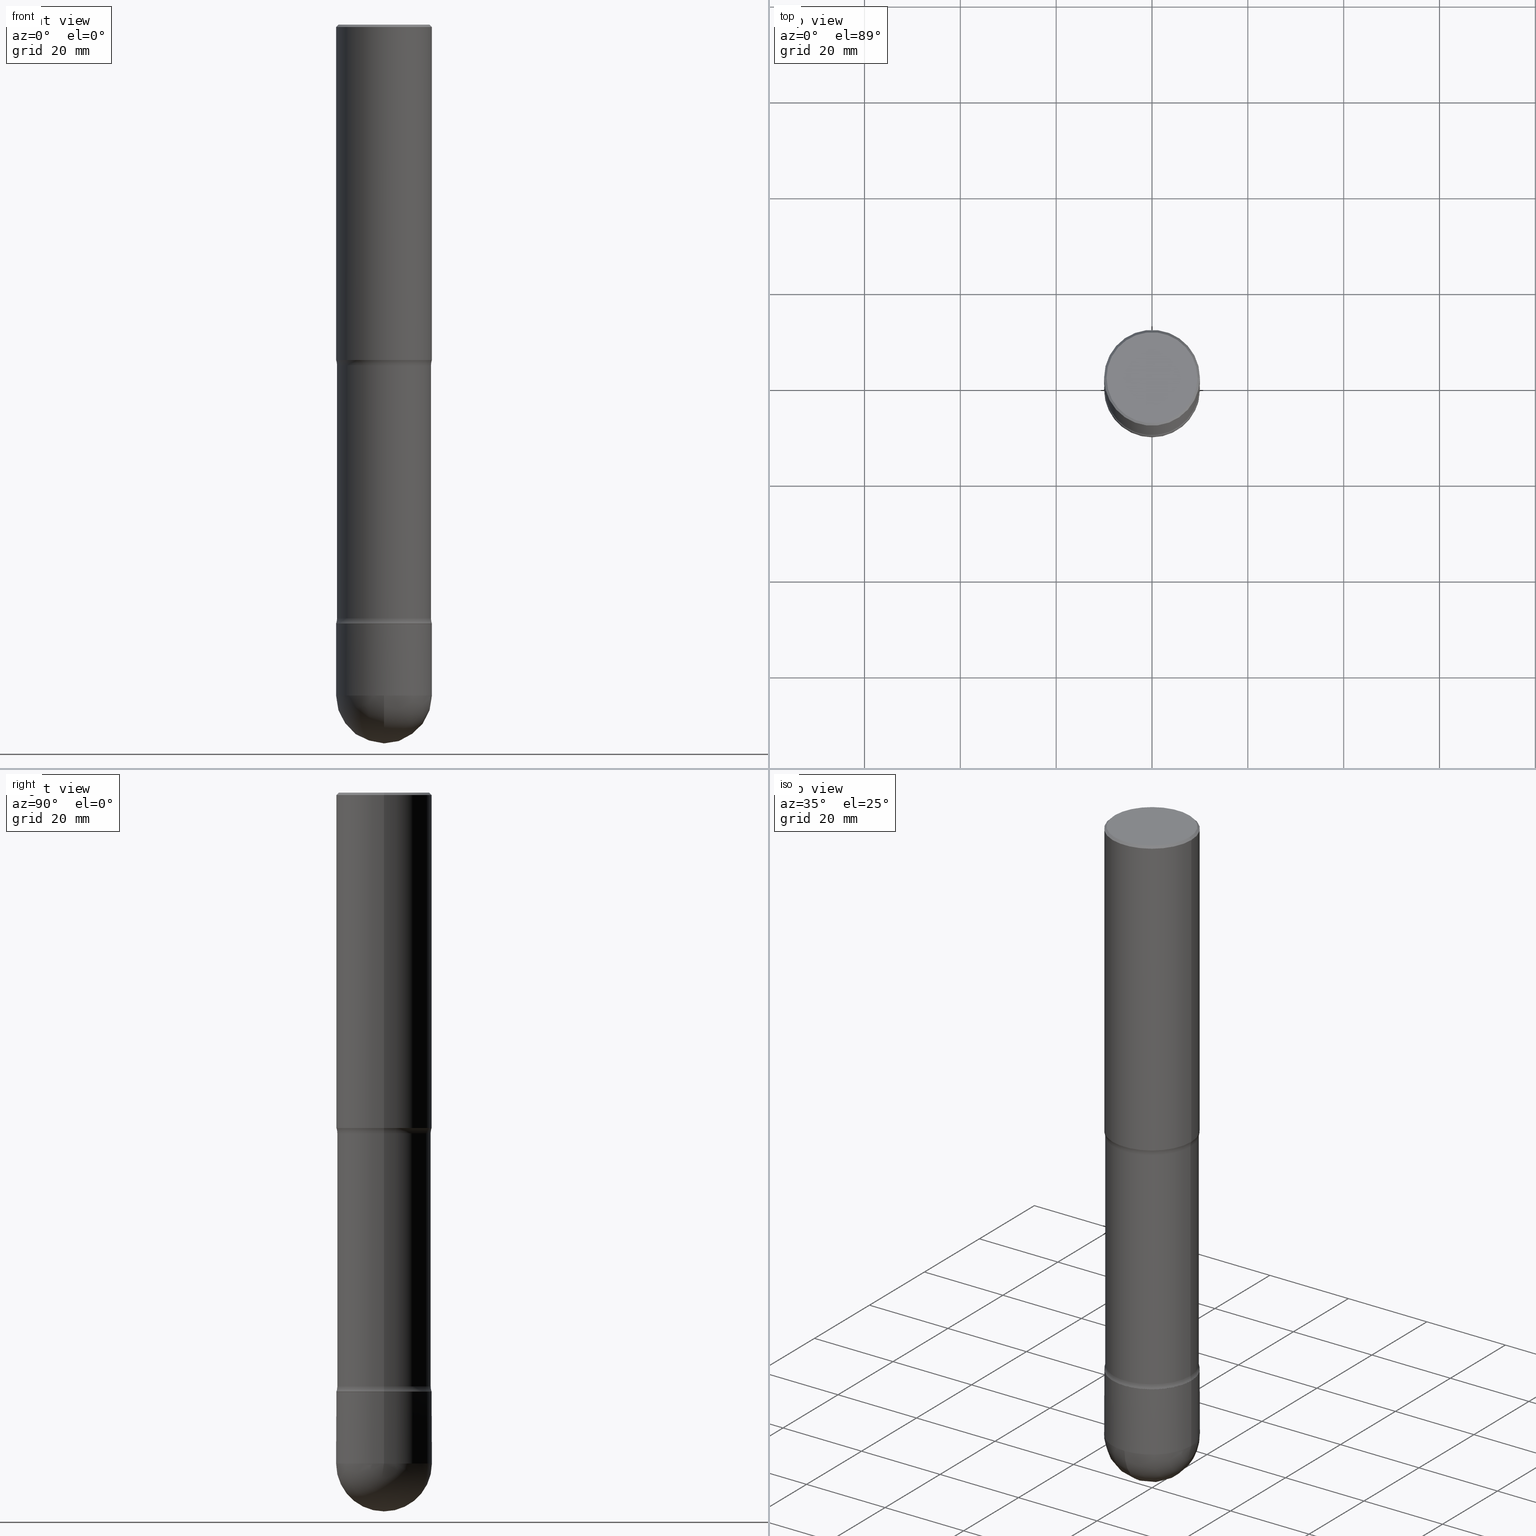
[diagram: canonical four-view strip — front | top / right | iso, engineering-drawing reading convention]
A machine part, canonical four-view strip (front | top / right | iso — engineering-drawing reading convention). The complete STEP part file that produces these views, byte-faithful:
ISO-10303-21;
HEADER;
FILE_DESCRIPTION (( 'STEP AP203' ),
    '1' );
FILE_NAME ('44586.STEP',
    '2024-02-29T19:25:32',
    ( '' ),
    ( '' ),
    'SwSTEP 2.0',
    'SolidWorks 2023',
    '' );
FILE_SCHEMA (( 'CONFIG_CONTROL_DESIGN' ));
ENDSEC;

DATA;
#1 = DIRECTION ( 'NONE',  ( 2.445468806185136597E-29, -3.491481338843145583E-15, -1.000000000000000000 ) ) ;
#2 = DIRECTION ( 'NONE',  ( 2.445468806185136877E-29, -3.491481338843145188E-15, -1.000000000000000000 ) ) ;
#3 = CARTESIAN_POINT ( 'NONE',  ( 4.890937612370354609E-31, -6.982962677686407473E-17, -0.02000000000000033348 ) ) ;
#4 = DIRECTION ( 'NONE',  ( -2.445468806185136877E-29, 3.491481338843145188E-15, 1.000000000000000000 ) ) ;
#5 = ADVANCED_FACE ( 'NONE', ( #476 ), #163, .T. ) ;
#6 = CARTESIAN_POINT ( 'NONE',  ( 1.344526706912624446E-28, -1.929256118791808272E-14, -5.511800000000000033 ) ) ;
#7 = CARTESIAN_POINT ( 'NONE',  ( -0.3936999999999989952, -1.541590565338776243E-14, -5.511800000000000033 ) ) ;
#8 = AXIS2_PLACEMENT_3D ( 'NONE', #225, #58, #179 ) ;
#9 = FACE_OUTER_BOUND ( 'NONE', #537, .T. ) ;
#10 = LOCAL_TIME ( 14, 25, 32.00000000000000000, #461 ) ;
#11 = CARTESIAN_POINT ( 'NONE',  ( 0.3736999999999996991, -2.667287895133366781E-15, 1.845150283989421456E-29 ) ) ;
#12 = CALENDAR_DATE ( 2024, 29, 2 ) ;
#13 = FACE_OUTER_BOUND ( 'NONE', #243, .T. ) ;
#14 = EDGE_CURVE ( 'NONE', #499, #369, #384, .T. ) ;
#15 = DIRECTION ( 'NONE',  ( -1.000000000000000000, 6.982962677686269866E-15, 0.000000000000000000 ) ) ;
#16 = CALENDAR_DATE ( 2024, 29, 2 ) ;
#17 = CARTESIAN_POINT ( 'NONE',  ( 0.5111999999999875532, -1.327816052295078105E-14, -2.798546805273079308 ) ) ;
#18 = ORIENTED_EDGE ( 'NONE', *, *, #145, .T. ) ;
#19 = CIRCLE ( 'NONE', #236, 0.3936999999999989952 ) ;
#20 = DATE_TIME_ROLE ( 'creation_date' ) ;
#21 = AXIS2_PLACEMENT_3D ( 'NONE', #487, #92, #270 ) ;
#22 = DIRECTION ( 'NONE',  ( -1.000000000000000000, 6.982962677686266711E-15, 0.000000000000000000 ) ) ;
#23 = ORIENTED_EDGE ( 'NONE', *, *, #90, .T. ) ;
#24 = SHAPE_DEFINITION_REPRESENTATION ( #199, #501 ) ;
#25 = ADVANCED_FACE ( 'NONE', ( #425 ), #200, .T. ) ;
#26 = CARTESIAN_POINT ( 'NONE',  ( 1.203464108899829379E-28, -1.718227796471488830E-14, -4.921199999999999797 ) ) ;
#27 = DATE_AND_TIME ( #16, #520 ) ;
#28 = DIRECTION ( 'NONE',  ( 2.445468806185136597E-29, -3.491481338843145583E-15, -1.000000000000000000 ) ) ;
#29 = EDGE_LOOP ( 'NONE', ( #518, #484, #23, #315 ) ) ;
#30 = CIRCLE ( 'NONE', #345, 0.3861999999999995437 ) ;
#31 = VERTEX_POINT ( 'NONE', #531 ) ;
#32 = CARTESIAN_POINT ( 'NONE',  ( -0.3935673271255956118, -1.443272949243584217E-14, -4.920832672874404068 ) ) ;
#33 = ADVANCED_FACE ( 'NONE', ( #9 ), #308, .F. ) ;
#34 = EDGE_LOOP ( 'NONE', ( #565, #170, #548, #541 ) ) ;
#35 = VERTEX_POINT ( 'NONE', #94 ) ;
#36 = APPROVAL_PERSON_ORGANIZATION ( #71, #481, #154 ) ;
#37 = DIRECTION ( 'NONE',  ( 2.445468806185136597E-29, -3.491481338843145583E-15, -1.000000000000000000 ) ) ;
#38 = EDGE_CURVE ( 'NONE', #378, #246, #268, .T. ) ;
#39 = EDGE_CURVE ( 'NONE', #160, #79, #390, .T. ) ;
#40 = CARTESIAN_POINT ( 'NONE',  ( 0.3861999999999992661, -1.237187487833494687E-14, -2.798546805273079308 ) ) ;
#41 = VERTEX_POINT ( 'NONE', #352 ) ;
#42 = VERTEX_POINT ( 'NONE', #136 ) ;
#43 = CIRCLE ( 'NONE', #366, 0.3936999999999991617 ) ;
#44 = DIRECTION ( 'NONE',  ( -0.7071067811865426878, 2.468850131082206573E-15, -0.7071067811865523467 ) ) ;
#45 = CARTESIAN_POINT ( 'NONE',  ( 1.193034965701952326E-28, -1.703337743994264860E-14, -4.878553194726919173 ) ) ;
#46 = EDGE_LOOP ( 'NONE', ( #221, #131, #387, #80 ) ) ;
#47 = ORIENTED_EDGE ( 'NONE', *, *, #475, .F. ) ;
#48 = FACE_OUTER_BOUND ( 'NONE', #29, .T. ) ;
#49 = EDGE_CURVE ( 'NONE', #436, #79, #353, .T. ) ;
#50 = CARTESIAN_POINT ( 'NONE',  ( 0.3935673271255956118, -1.988106330864406077E-14, -4.920832672874404068 ) ) ;
#51 = DIRECTION ( 'NONE',  ( 2.445468806185136597E-29, -3.491481338843145583E-15, -1.000000000000000000 ) ) ;
#52 = EDGE_LOOP ( 'NONE', ( #488, #162, #392, #85 ) ) ;
#53 = EDGE_LOOP ( 'NONE', ( #47, #517, #506, #168 ) ) ;
#54 = CARTESIAN_POINT ( 'NONE',  ( 1.203464108899829379E-28, -1.718227796471488830E-14, -4.921199999999999797 ) ) ;
#55 = AXIS2_PLACEMENT_3D ( 'NONE', #373, #228, #406 ) ;
#56 = DIRECTION ( 'NONE',  ( 1.000000000000000000, -6.982962677686261977E-15, 0.000000000000000000 ) ) ;
#57 = CARTESIAN_POINT ( 'NONE',  ( 0.5112000000000086475, -2.054046401640351860E-14, -4.878553194726919173 ) ) ;
#58 = DIRECTION ( 'NONE',  ( 2.445468806185136597E-29, -3.491481338843145583E-15, -1.000000000000000000 ) ) ;
#59 = ADVANCED_FACE ( 'NONE', ( #142 ), #496, .T. ) ;
#60 = CARTESIAN_POINT ( 'NONE',  ( 0.000000000000000000, 0.000000000000000000, 0.000000000000000000 ) ) ;
#61 = CARTESIAN_POINT ( 'NONE',  ( -0.3937000000000001054, -6.872981015512738807E-15, -2.755899999999999572 ) ) ;
#62 = PERSON_AND_ORGANIZATION ( #104, #227 ) ;
#63 = DIRECTION ( 'NONE',  ( -1.000000000000000000, 6.982962677686265133E-15, -4.883557194083111780E-29 ) ) ;
#64 = EDGE_LOOP ( 'NONE', ( #111, #452, #515, #116 ) ) ;
#65 = DIRECTION ( 'NONE',  ( 1.000000000000000000, -6.982962677686266711E-15, 0.000000000000000000 ) ) ;
#66 = CIRCLE ( 'NONE', #149, 0.3936999999999993838 ) ;
#67 = EDGE_CURVE ( 'NONE', #510, #41, #311, .T. ) ;
#68 = CALENDAR_DATE ( 2024, 29, 2 ) ;
#69 = AXIS2_PLACEMENT_3D ( 'NONE', #535, #51, #218 ) ;
#70 = CARTESIAN_POINT ( 'NONE',  ( 2.609533152651355437E-15, 0.3736999999999996991, -1.300498063835582025E-15 ) ) ;
#71 = PERSON_AND_ORGANIZATION ( #104, #227 ) ;
#72 = ORIENTED_EDGE ( 'NONE', *, *, #81, .F. ) ;
#73 = AXIS2_PLACEMENT_3D ( 'NONE', #433, #93, #399 ) ;
#74 = DIRECTION ( 'NONE',  ( 6.982962677686265133E-15, 1.000000000000000000, -2.775563112689121034E-15 ) ) ;
#75 = AXIS2_PLACEMENT_3D ( 'NONE', #367, #107, #22 ) ;
#76 = LOCAL_TIME ( 14, 25, 32.00000000000000000, #466 ) ;
#77 = ORIENTED_EDGE ( 'NONE', *, *, #67, .F. ) ;
#78 = DIRECTION ( 'NONE',  ( 2.445468806185136597E-29, -3.491481338843145583E-15, -1.000000000000000000 ) ) ;
#79 = VERTEX_POINT ( 'NONE', #50 ) ;
#80 = ORIENTED_EDGE ( 'NONE', *, *, #38, .F. ) ;
#81 = EDGE_CURVE ( 'NONE', #426, #35, #66, .T. ) ;
#82 = CC_DESIGN_SECURITY_CLASSIFICATION ( #303, ( #360 ) ) ;
#83 = EDGE_LOOP ( 'NONE', ( #553, #261, #295, #300, #465 ) ) ;
#84 = DIRECTION ( 'NONE',  ( -1.000000000000000000, 6.982962677686266711E-15, -4.876176775795935793E-29 ) ) ;
#85 = ORIENTED_EDGE ( 'NONE', *, *, #209, .F. ) ;
#86 = DIRECTION ( 'NONE',  ( -1.000000000000000000, 6.982962677686265922E-15, 0.000000000000000000 ) ) ;
#87 = DIRECTION ( 'NONE',  ( 2.438088387897960049E-29, -3.491481338843145188E-15, -1.000000000000000000 ) ) ;
#88 = ORIENTED_EDGE ( 'NONE', *, *, #39, .F. ) ;
#89 = VECTOR ( 'NONE', #351, 39.37007874015748854 ) ;
#90 = EDGE_CURVE ( 'NONE', #510, #246, #538, .T. ) ;
#91 = CARTESIAN_POINT ( 'NONE',  ( -0.3861999999999994326, -1.448545777859245492E-14, -4.921199999999999797 ) ) ;
#92 = DIRECTION ( 'NONE',  ( -2.445468806185136597E-29, 3.491481338843145583E-15, 1.000000000000000000 ) ) ;
#93 = DIRECTION ( 'NONE',  ( 2.445468806185136597E-29, -3.491481338843145583E-15, -1.000000000000000000 ) ) ;
#94 = CARTESIAN_POINT ( 'NONE',  ( -2.797406750687373580E-15, -0.3937000000000184796, -5.511799999999999145 ) ) ;
#95 = DIRECTION ( 'NONE',  ( 2.445468806185136597E-29, -3.491481338843145583E-15, -1.000000000000000000 ) ) ;
#96 = DIRECTION ( 'NONE',  ( -1.000000000000000000, 6.982962677686265133E-15, -4.883557194083112340E-29 ) ) ;
#97 = ORIENTED_EDGE ( 'NONE', *, *, #522, .T. ) ;
#98 = DIRECTION ( 'NONE',  ( -2.445468806185136597E-29, 3.491481338843145583E-15, 1.000000000000000000 ) ) ;
#99 = DIRECTION ( 'NONE',  ( 1.000000000000000000, -6.982962677686266711E-15, 0.000000000000000000 ) ) ;
#100 = EDGE_CURVE ( 'NONE', #42, #369, #43, .T. ) ;
#101 = CIRCLE ( 'NONE', #171, 0.1249999999999882871 ) ;
#102 = DIRECTION ( 'NONE',  ( -1.000000000000000000, 6.982962677686266711E-15, 0.000000000000000000 ) ) ;
#103 = DATE_AND_TIME ( #12, #547 ) ;
#104 = PERSON ( 'UNSPECIFIED', 'UNSPECIFIED', 'UNSPECIFIED', ('UNSPECIFIED'), ('UNSPECIFIED'), ('UNSPECIFIED') ) ;
#105 = CARTESIAN_POINT ( 'NONE',  ( 4.890937612370354609E-31, -6.982962677686407473E-17, -0.02000000000000033348 ) ) ;
#106 = MECHANICAL_CONTEXT ( 'NONE', #144, 'mechanical' ) ;
#107 = DIRECTION ( 'NONE',  ( 2.445468806185136597E-29, -3.491481338843145583E-15, -1.000000000000000000 ) ) ;
#108 = FACE_OUTER_BOUND ( 'NONE', #217, .T. ) ;
#109 = MANIFOLD_SOLID_BREP ( 'Body-Move/Copy2[1]', #428 ) ;
#110 =( NAMED_UNIT ( * ) PLANE_ANGLE_UNIT ( ) SI_UNIT ( $, .RADIAN. ) );
#111 = ORIENTED_EDGE ( 'NONE', *, *, #322, .F. ) ;
#112 = PERSON_AND_ORGANIZATION ( #104, #227 ) ;
#113 = CC_DESIGN_APPROVAL ( #282, ( #360 ) ) ;
#114 = CARTESIAN_POINT ( 'NONE',  ( 6.843758914944385400E-29, -9.771073946490059360E-15, -2.798546805273079308 ) ) ;
#115 = COORDINATED_UNIVERSAL_TIME_OFFSET ( 5, 0, .BEHIND. ) ;
#116 = ORIENTED_EDGE ( 'NONE', *, *, #49, .F. ) ;
#117 = ORIENTED_EDGE ( 'NONE', *, *, #195, .F. ) ;
#118 = CC_DESIGN_PERSON_AND_ORGANIZATION_ASSIGNMENT ( #408, #321, ( #379 ) ) ;
#119 = ORIENTED_EDGE ( 'NONE', *, *, #529, .F. ) ;
#120 = AXIS2_PLACEMENT_3D ( 'NONE', #382, #469, #509 ) ;
#121 = DIRECTION ( 'NONE',  ( -1.000000000000000000, 6.982962677686266711E-15, 0.000000000000000000 ) ) ;
#122 = CIRCLE ( 'NONE', #191, 0.3861999999999995437 ) ;
#123 = ORIENTED_EDGE ( 'NONE', *, *, #522, .F. ) ;
#124 = ADVANCED_FACE ( 'NONE', ( #215 ), #449, .T. ) ;
#125 = CARTESIAN_POINT ( 'NONE',  ( 1.203464108899829379E-28, -1.718227796471488830E-14, -4.921199999999999797 ) ) ;
#126 = EDGE_LOOP ( 'NONE', ( #119, #194, #207, #381 ) ) ;
#127 = AXIS2_PLACEMENT_3D ( 'NONE', #237, #288, #412 ) ;
#128 = ORIENTED_EDGE ( 'NONE', *, *, #516, .F. ) ;
#129 = DIRECTION ( 'NONE',  ( 2.445468806185136597E-29, -3.491481338843145583E-15, -1.000000000000000000 ) ) ;
#130 =( CONVERSION_BASED_UNIT ( 'INCH', #401 ) LENGTH_UNIT ( ) NAMED_UNIT ( #479 ) );
#131 = ORIENTED_EDGE ( 'NONE', *, *, #475, .T. ) ;
#132 = DIRECTION ( 'NONE',  ( 0.7071067811865426878, -7.319954787623238690E-15, -0.7071067811865523467 ) ) ;
#133 = ADVANCED_FACE ( 'NONE', ( #458 ), #238, .T. ) ;
#134 = VERTEX_POINT ( 'NONE', #329 ) ;
#135 = DIRECTION ( 'NONE',  ( -1.000000000000000000, 6.982962677686268288E-15, 0.000000000000000000 ) ) ;
#136 = CARTESIAN_POINT ( 'NONE',  ( -0.3936999999999991617, -1.541590565338776243E-14, -4.921199999999999797 ) ) ;
#137 = CARTESIAN_POINT ( 'NONE',  ( 1.203464108899829379E-28, -1.718227796471488830E-14, -4.921199999999999797 ) ) ;
#138 = CARTESIAN_POINT ( 'NONE',  ( 1.203464108899829379E-28, -1.718227796471488830E-14, -4.921199999999999797 ) ) ;
#139 = AXIS2_PLACEMENT_3D ( 'NONE', #316, #357, #533 ) ;
#140 = VECTOR ( 'NONE', #132, 39.37007874015748143 ) ;
#141 = DIRECTION ( 'NONE',  ( -1.000000000000000000, 6.982962677686265133E-15, 0.000000000000000000 ) ) ;
#142 = FACE_OUTER_BOUND ( 'NONE', #52, .T. ) ;
#143 = CARTESIAN_POINT ( 'NONE',  ( 1.193034965701952550E-28, -1.703337743994265175E-14, -4.878553194726920061 ) ) ;
#144 = APPLICATION_CONTEXT ( 'configuration controlled 3d designs of mechanical parts and assemblies' ) ;
#145 = EDGE_CURVE ( 'NONE', #160, #41, #485, .T. ) ;
#146 = CARTESIAN_POINT ( 'NONE',  ( 0.3936999999999989952, -2.096250481028034702E-14, -5.511800000000000033 ) ) ;
#147 = APPLICATION_CONTEXT ( 'configuration controlled 3d designs of mechanical parts and assemblies' ) ;
#148 = PERSON_AND_ORGANIZATION ( #104, #227 ) ;
#149 = AXIS2_PLACEMENT_3D ( 'NONE', #6, #176, #178 ) ;
#150 = VECTOR ( 'NONE', #361, 39.37007874015748143 ) ;
#151 = APPROVAL_DATE_TIME ( #500, #282 ) ;
#152 = FACE_OUTER_BOUND ( 'NONE', #64, .T. ) ;
#153 = ORIENTED_EDGE ( 'NONE', *, *, #220, .T. ) ;
#154 = APPROVAL_ROLE ( '' ) ;
#155 = ADVANCED_FACE ( 'NONE', ( #108 ), #240, .T. ) ;
#156 = APPROVAL_ROLE ( '' ) ;
#157 = VECTOR ( 'NONE', #257, 39.37007874015748143 ) ;
#158 = AXIS2_PLACEMENT_3D ( 'NONE', #305, #483, #99 ) ;
#159 = ADVANCED_FACE ( 'NONE', ( #337 ), #513, .T. ) ;
#160 = VERTEX_POINT ( 'NONE', #32 ) ;
#161 = ORIENTED_EDGE ( 'NONE', *, *, #302, .F. ) ;
#162 = ORIENTED_EDGE ( 'NONE', *, *, #529, .T. ) ;
#163 = CYLINDRICAL_SURFACE ( 'NONE', #120, 0.3861999999999994326 ) ;
#164 = AXIS2_PLACEMENT_3D ( 'NONE', #413, #372, #327 ) ;
#165 = EDGE_CURVE ( 'NONE', #566, #35, #19, .T. ) ;
#166 = EDGE_LOOP ( 'NONE', ( #447, #350, #306, #525, #153 ) ) ;
#167 = DIRECTION ( 'NONE',  ( -2.445468806185136597E-29, 3.491481338843145583E-15, 1.000000000000000000 ) ) ;
#168 = ORIENTED_EDGE ( 'NONE', *, *, #277, .F. ) ;
#169 = LINE ( 'NONE', #346, #140 ) ;
#170 = ORIENTED_EDGE ( 'NONE', *, *, #81, .T. ) ;
#171 = AXIS2_PLACEMENT_3D ( 'NONE', #17, #185, #230 ) ;
#172 = AXIS2_PLACEMENT_3D ( 'NONE', #137, #524, #86 ) ;
#173 = CC_DESIGN_PERSON_AND_ORGANIZATION_ASSIGNMENT ( #62, #186, ( #303 ) ) ;
#174 = DIRECTION ( 'NONE',  ( 6.860497997771531562E-15, 1.000000000000000000, -3.491481338843145583E-15 ) ) ;
#175 = ORIENTED_EDGE ( 'NONE', *, *, #90, .F. ) ;
#176 = DIRECTION ( 'NONE',  ( -1.000000000000000000, 7.105427357601001070E-15, -4.926315508542082329E-29 ) ) ;
#177 = ORIENTED_EDGE ( 'NONE', *, *, #233, .T. ) ;
#178 = DIRECTION ( 'NONE',  ( -7.105427357601001070E-15, -1.000000000000000000, 0.000000000000000000 ) ) ;
#179 = DIRECTION ( 'NONE',  ( -1.000000000000000000, 6.982962677686266711E-15, -4.876176775795935793E-29 ) ) ;
#180 = VERTEX_POINT ( 'NONE', #242 ) ;
#181 = CC_DESIGN_DATE_AND_TIME_ASSIGNMENT ( #536, #235, ( #303 ) ) ;
#182 = TOROIDAL_SURFACE ( 'NONE', #486, 0.5111999999999875532, 0.1249999999999883010 ) ;
#183 = DIRECTION ( 'NONE',  ( 2.445468806185136597E-29, -3.491481338843145583E-15, -1.000000000000000000 ) ) ;
#184 = VERTEX_POINT ( 'NONE', #416 ) ;
#185 = DIRECTION ( 'NONE',  ( 6.860497997771531562E-15, 1.000000000000000000, -3.491481338843145583E-15 ) ) ;
#186 = PERSON_AND_ORGANIZATION_ROLE ( 'classification_officer' ) ;
#187 = ORIENTED_EDGE ( 'NONE', *, *, #195, .T. ) ;
#188 = DIRECTION ( 'NONE',  ( 1.000000000000000000, 0.000000000000000000, 0.000000000000000000 ) ) ;
#189 = ORIENTED_EDGE ( 'NONE', *, *, #277, .T. ) ;
#190 = AXIS2_PLACEMENT_3D ( 'NONE', #3, #95, #269 ) ;
#191 = AXIS2_PLACEMENT_3D ( 'NONE', #143, #224, #450 ) ;
#192 = ADVANCED_FACE ( 'NONE', ( #152 ), #455, .T. ) ;
#193 = CALENDAR_DATE ( 2024, 29, 2 ) ;
#194 = ORIENTED_EDGE ( 'NONE', *, *, #468, .T. ) ;
#195 = EDGE_CURVE ( 'NONE', #480, #510, #338, .T. ) ;
#196 = DIRECTION ( 'NONE',  ( 1.000000000000000000, -6.982962677686265922E-15, 4.876176775795935793E-29 ) ) ;
#197 = CIRCLE ( 'NONE', #519, 0.3936999999999997724 ) ;
#198 = ORIENTED_EDGE ( 'NONE', *, *, #400, .T. ) ;
#199 = PRODUCT_DEFINITION_SHAPE ( 'NONE', 'NONE',  #267 ) ;
#200 = CYLINDRICAL_SURFACE ( 'NONE', #301, 0.3936999999999999389 ) ;
#201 = ORIENTED_EDGE ( 'NONE', *, *, #323, .F. ) ;
#202 = ORIENTED_EDGE ( 'NONE', *, *, #67, .T. ) ;
#203 = AXIS2_PLACEMENT_3D ( 'NONE', #70, #419, #196 ) ;
#204 = AXIS2_PLACEMENT_3D ( 'NONE', #138, #98, #554 ) ;
#205 = CYLINDRICAL_SURFACE ( 'NONE', #368, 0.3936999999999990507 ) ;
#206 = CARTESIAN_POINT ( 'NONE',  ( -0.3931999999999991058, -1.438842392770617915E-14, -4.921199999999999797 ) ) ;
#207 = ORIENTED_EDGE ( 'NONE', *, *, #209, .T. ) ;
#208 = ORIENTED_EDGE ( 'NONE', *, *, #415, .F. ) ;
#209 = EDGE_CURVE ( 'NONE', #298, #378, #424, .T. ) ;
#210 = CARTESIAN_POINT ( 'NONE',  ( -0.3936999999999990507, 2.797406750687507687E-15, -1.936584745033351971E-29 ) ) ;
#211 = CIRCLE ( 'NONE', #462, 0.3936999999999989952 ) ;
#212 = DIRECTION ( 'NONE',  ( -2.445468806185136597E-29, 3.491481338843145583E-15, 1.000000000000000000 ) ) ;
#213 = CARTESIAN_POINT ( 'NONE',  ( 1.347893496593123646E-28, -1.924434684343564878E-14, -5.511800000000000033 ) ) ;
#214 = DIRECTION ( 'NONE',  ( 2.438088387897960049E-29, -3.491481338843145188E-15, -1.000000000000000000 ) ) ;
#215 = FACE_OUTER_BOUND ( 'NONE', #53, .T. ) ;
#216 = FACE_OUTER_BOUND ( 'NONE', #166, .T. ) ;
#217 = EDGE_LOOP ( 'NONE', ( #198, #255, #310, #77 ) ) ;
#218 = DIRECTION ( 'NONE',  ( -1.000000000000000000, 6.982962677686266711E-15, 0.000000000000000000 ) ) ;
#219 = DIRECTION ( 'NONE',  ( -1.000000000000000000, 6.982962677686265922E-15, -4.876176775795935793E-29 ) ) ;
#220 = EDGE_CURVE ( 'NONE', #499, #251, #211, .T. ) ;
#221 = ORIENTED_EDGE ( 'NONE', *, *, #456, .T. ) ;
#222 = ORIENTED_EDGE ( 'NONE', *, *, #100, .T. ) ;
#223 = DIRECTION ( 'NONE',  ( 2.445468806185136877E-29, -3.491481338843145188E-15, -1.000000000000000000 ) ) ;
#224 = DIRECTION ( 'NONE',  ( 2.445468806185136597E-29, -3.491481338843145583E-15, -1.000000000000000000 ) ) ;
#225 = CARTESIAN_POINT ( 'NONE',  ( 0.000000000000000000, 0.000000000000000000, 0.000000000000000000 ) ) ;
#226 = AXIS2_PLACEMENT_3D ( 'NONE', #318, #355, #264 ) ;
#227 = ORGANIZATION ( 'UNSPECIFIED', 'UNSPECIFIED', '' ) ;
#228 = DIRECTION ( 'NONE',  ( 2.445468806185136597E-29, -3.491481338843145583E-15, -1.000000000000000000 ) ) ;
#229 = DIRECTION ( 'NONE',  ( -1.000000000000000000, 6.860497997771522885E-15, 0.000000000000000000 ) ) ;
#230 = DIRECTION ( 'NONE',  ( -1.000000000000000000, 6.860497997771536296E-15, 0.000000000000000000 ) ) ;
#231 = CARTESIAN_POINT ( 'NONE',  ( 1.193034965701952550E-28, -1.703337743994265175E-14, -4.878553194726920061 ) ) ;
#232 = CARTESIAN_POINT ( 'NONE',  ( 1.344526706912624446E-28, -1.929256118791808272E-14, -5.511800000000000033 ) ) ;
#233 = EDGE_CURVE ( 'NONE', #79, #160, #561, .T. ) ;
#234 = DIRECTION ( 'NONE',  ( 2.445468806185136597E-29, -3.491481338843145583E-15, -1.000000000000000000 ) ) ;
#235 = DATE_TIME_ROLE ( 'classification_date' ) ;
#236 = AXIS2_PLACEMENT_3D ( 'NONE', #474, #341, #463 ) ;
#237 = CARTESIAN_POINT ( 'NONE',  ( 1.203374280197098316E-28, -1.718099544891061913E-14, -4.920832672874404068 ) ) ;
#238 = SPHERICAL_SURFACE ( 'NONE', #164, 0.3936999999999993838 ) ;
#239 = AXIS2_PLACEMENT_3D ( 'NONE', #262, #183, #354 ) ;
#240 = CYLINDRICAL_SURFACE ( 'NONE', #55, 0.3861999999999994326 ) ;
#241 = DATE_AND_TIME ( #68, #10 ) ;
#242 = CARTESIAN_POINT ( 'NONE',  ( -0.3931999999999991058, -1.438647766170034457E-14, -4.921199999999999797 ) ) ;
#243 = EDGE_LOOP ( 'NONE', ( #72, #342, #248, #161 ) ) ;
#244 =( NAMED_UNIT ( * ) SI_UNIT ( $, .STERADIAN. ) SOLID_ANGLE_UNIT ( ) );
#245 = ADVANCED_FACE ( 'NONE', ( #247 ), #376, .T. ) ;
#246 = VERTEX_POINT ( 'NONE', #61 ) ;
#247 = FACE_OUTER_BOUND ( 'NONE', #448, .T. ) ;
#248 = ORIENTED_EDGE ( 'NONE', *, *, #220, .F. ) ;
#249 = CIRCLE ( 'NONE', #75, 0.3861999999999992661 ) ;
#250 = CC_DESIGN_APPROVAL ( #481, ( #267 ) ) ;
#251 = VERTEX_POINT ( 'NONE', #276 ) ;
#252 = CARTESIAN_POINT ( 'NONE',  ( 1.442488208652382782E-28, -2.064305021877940893E-14, -5.905499999999999972 ) ) ;
#253 = ADVANCED_FACE ( 'NONE', ( #13 ), #364, .T. ) ;
#254 = DIRECTION ( 'NONE',  ( -1.000000000000000000, 6.982962677686267499E-15, -4.883557194083113462E-29 ) ) ;
#255 = ORIENTED_EDGE ( 'NONE', *, *, #540, .T. ) ;
#256 = EDGE_LOOP ( 'NONE', ( #502, #187, #202, #549 ) ) ;
#257 = DIRECTION ( 'NONE',  ( -2.445468806185136877E-29, 3.491481338843145188E-15, 1.000000000000000000 ) ) ;
#258 = CIRCLE ( 'NONE', #8, 0.3736999999999996991 ) ;
#259 = AXIS2_PLACEMENT_3D ( 'NONE', #45, #439, #96 ) ;
#260 = DIRECTION ( 'NONE',  ( 1.000000000000000000, -6.982962677686266711E-15, 0.000000000000000000 ) ) ;
#261 = ORIENTED_EDGE ( 'NONE', *, *, #165, .T. ) ;
#262 = CARTESIAN_POINT ( 'NONE',  ( 4.890937612370354609E-31, -6.982962677686407473E-17, -0.02000000000000033348 ) ) ;
#263 = DIRECTION ( 'NONE',  ( -1.000000000000000000, 6.982962677686265133E-15, -4.883557194083112340E-29 ) ) ;
#264 = DIRECTION ( 'NONE',  ( -1.000000000000000000, 6.982962677686267499E-15, -4.883557194083113462E-29 ) ) ;
#265 = AXIS2_PLACEMENT_3D ( 'NONE', #336, #167, #297 ) ;
#266 = AXIS2_PLACEMENT_3D ( 'NONE', #527, #391, #263 ) ;
#267 = PRODUCT_DEFINITION ( 'UNKNOWN', '', #360, #440 ) ;
#268 = LINE ( 'NONE', #435, #429 ) ;
#269 = DIRECTION ( 'NONE',  ( -1.000000000000000000, 6.982962677686266711E-15, 0.000000000000000000 ) ) ;
#270 = DIRECTION ( 'NONE',  ( 1.000000000000000000, -6.982962677686266711E-15, 4.876176775795935232E-29 ) ) ;
#271 = FACE_OUTER_BOUND ( 'NONE', #560, .T. ) ;
#272 = EDGE_LOOP ( 'NONE', ( #128, #88, #18, #348 ) ) ;
#273 = DIRECTION ( 'NONE',  ( 1.000000000000000000, -6.982962677686268288E-15, 0.000000000000000000 ) ) ;
#274 = DIRECTION ( 'NONE',  ( -1.000000000000000000, 6.982962677686266711E-15, 0.000000000000000000 ) ) ;
#275 = CARTESIAN_POINT ( 'NONE',  ( -0.5112000000000086475, -1.346368691910937035E-14, -4.878553194726919173 ) ) ;
#276 = CARTESIAN_POINT ( 'NONE',  ( 2.749192406205212195E-15, 0.3936999999999799549, -5.511800000000000921 ) ) ;
#277 = EDGE_CURVE ( 'NONE', #31, #246, #359, .T. ) ;
#278 = CIRCLE ( 'NONE', #546, 0.3936999999999989952 ) ;
#279 = VECTOR ( 'NONE', #454, 39.37007874015748143 ) ;
#280 = CARTESIAN_POINT ( 'NONE',  ( -0.3936999999999997724, 2.679362779428217157E-15, -0.02000000000000033348 ) ) ;
#281 = PERSON_AND_ORGANIZATION ( #104, #227 ) ;
#282 = APPROVAL ( #409, 'UNSPECIFIED' ) ;
#283 = PERSON_AND_ORGANIZATION_ROLE ( 'design_supplier' ) ;
#284 = CARTESIAN_POINT ( 'NONE',  ( 6.739467482965617111E-29, -9.622173421717822812E-15, -2.755899999999999572 ) ) ;
#285 = COORDINATED_UNIVERSAL_TIME_OFFSET ( 5, 0, .BEHIND. ) ;
#286 = AXIS2_PLACEMENT_3D ( 'NONE', #563, #214, #394 ) ;
#287 = CC_DESIGN_PERSON_AND_ORGANIZATION_ASSIGNMENT ( #365, #495, ( #360 ) ) ;
#288 = DIRECTION ( 'NONE',  ( 2.445468806185136597E-29, -3.491481338843145583E-15, -1.000000000000000000 ) ) ;
#289 = PERSON_AND_ORGANIZATION_ROLE ( 'creator' ) ;
#290 = ORIENTED_EDGE ( 'NONE', *, *, #49, .T. ) ;
#291 = ORIENTED_EDGE ( 'NONE', *, *, #516, .T. ) ;
#292 = CLOSED_SHELL ( 'NONE', ( #192, #451, #155, #331, #25, #59, #508, #124, #422, #5, #460, #159, #356, #245 ) ) ;
#293 = AXIS2_PLACEMENT_3D ( 'NONE', #521, #557, #441 ) ;
#294 = AXIS2_PLACEMENT_3D ( 'NONE', #319, #309, #274 ) ;
#295 = ORIENTED_EDGE ( 'NONE', *, *, #302, .T. ) ;
#296 = EDGE_CURVE ( 'NONE', #426, #251, #503, .T. ) ;
#297 = DIRECTION ( 'NONE',  ( 1.000000000000000000, -6.982962677686265922E-15, 0.000000000000000000 ) ) ;
#298 = VERTEX_POINT ( 'NONE', #307 ) ;
#299 = EDGE_LOOP ( 'NONE', ( #432, #291, #418, #335 ) ) ;
#300 = ORIENTED_EDGE ( 'NONE', *, *, #14, .T. ) ;
#301 = AXIS2_PLACEMENT_3D ( 'NONE', #125, #37, #389 ) ;
#302 = EDGE_CURVE ( 'NONE', #35, #499, #278, .T. ) ;
#303 = SECURITY_CLASSIFICATION ( '', '', #459 ) ;
#304 = DIRECTION ( 'NONE',  ( 1.000000000000000000, -6.982962677686266711E-15, 4.876176775795935232E-29 ) ) ;
#305 = CARTESIAN_POINT ( 'NONE',  ( 1.347893496593123646E-28, -1.924434684343564878E-14, -5.511800000000000033 ) ) ;
#306 = ORIENTED_EDGE ( 'NONE', *, *, #405, .F. ) ;
#307 = CARTESIAN_POINT ( 'NONE',  ( -0.3736999999999996991, 2.609533152651355831E-15, -1.822227261114939718E-29 ) ) ;
#308 = PLANE ( 'NONE',  #286 ) ;
#309 = DIRECTION ( 'NONE',  ( 2.445468806185136597E-29, -3.491481338843145583E-15, -1.000000000000000000 ) ) ;
#310 = ORIENTED_EDGE ( 'NONE', *, *, #385, .F. ) ;
#311 = LINE ( 'NONE', #91, #410 ) ;
#312 = FACE_OUTER_BOUND ( 'NONE', #299, .T. ) ;
#313 = AXIS2_PLACEMENT_3D ( 'NONE', #344, #129, #135 ) ;
#314 = CIRCLE ( 'NONE', #172, 0.3931999999999991058 ) ;
#315 = ORIENTED_EDGE ( 'NONE', *, *, #559, .T. ) ;
#316 = CARTESIAN_POINT ( 'NONE',  ( -0.5111999999999875532, -6.201383425656925475E-15, -2.798546805273079308 ) ) ;
#317 = CARTESIAN_POINT ( 'NONE',  ( -0.3861999999999992661, -7.074253760367627561E-15, -2.798546805273079308 ) ) ;
#318 = CARTESIAN_POINT ( 'NONE',  ( 6.843758914944385400E-29, -9.771073946490059360E-15, -2.798546805273079308 ) ) ;
#319 = CARTESIAN_POINT ( 'NONE',  ( 4.890937612370354609E-31, -6.982962677686407473E-17, -0.02000000000000033348 ) ) ;
#320 = FACE_OUTER_BOUND ( 'NONE', #492, .T. ) ;
#321 = PERSON_AND_ORGANIZATION_ROLE ( 'design_owner' ) ;
#322 = EDGE_CURVE ( 'NONE', #180, #436, #324, .T. ) ;
#323 = EDGE_CURVE ( 'NONE', #298, #467, #258, .T. ) ;
#324 = CIRCLE ( 'NONE', #73, 0.3931999999999991058 ) ;
#325 = CONICAL_SURFACE ( 'NONE', #294, 0.3936999999999997724, 0.7853981633974415066 ) ;
#326 = DIRECTION ( 'NONE',  ( -2.445468806185136597E-29, 3.491481338843145583E-15, 1.000000000000000000 ) ) ;
#327 = DIRECTION ( 'NONE',  ( 6.982962677686265133E-15, 1.000000000000000000, -2.775563112689121034E-15 ) ) ;
#328 = APPLICATION_PROTOCOL_DEFINITION ( 'international standard', 'config_control_design', 1994, #144 ) ;
#329 = CARTESIAN_POINT ( 'NONE',  ( 0.3936999999999997724, -2.770807688499514550E-15, -0.02000000000000033348 ) ) ;
#330 = PERSON_AND_ORGANIZATION ( #104, #227 ) ;
#331 = ADVANCED_FACE ( 'NONE', ( #320 ), #332, .F. ) ;
#332 = TOROIDAL_SURFACE ( 'NONE', #226, 0.5111999999999875532, 0.1249999999999883010 ) ;
#333 = CC_DESIGN_APPROVAL ( #544, ( #303 ) ) ;
#334 = ORIENTED_EDGE ( 'NONE', *, *, #405, .T. ) ;
#335 = ORIENTED_EDGE ( 'NONE', *, *, #145, .F. ) ;
#336 = CARTESIAN_POINT ( 'NONE',  ( 1.203464108899829379E-28, -1.718227796471488830E-14, -4.921199999999999797 ) ) ;
#337 = FACE_OUTER_BOUND ( 'NONE', #420, .T. ) ;
#338 = CIRCLE ( 'NONE', #551, 0.3861999999999992661 ) ;
#339 = CIRCLE ( 'NONE', #403, 0.3736999999999996991 ) ;
#340 = CARTESIAN_POINT ( 'NONE',  ( 0.3936999999999990507, -2.749192406205076511E-15, 1.919750796630855127E-29 ) ) ;
#341 = DIRECTION ( 'NONE',  ( -2.445468806185136597E-29, 3.491481338843145583E-15, 1.000000000000000000 ) ) ;
#342 = ORIENTED_EDGE ( 'NONE', *, *, #296, .T. ) ;
#343 = PRODUCT_RELATED_PRODUCT_CATEGORY ( 'detail', '', ( #379 ) ) ;
#344 = CARTESIAN_POINT ( 'NONE',  ( 1.203374280197098316E-28, -1.718099544891061913E-14, -4.920832672874404068 ) ) ;
#345 = AXIS2_PLACEMENT_3D ( 'NONE', #231, #234, #15 ) ;
#346 = CARTESIAN_POINT ( 'NONE',  ( 0.3936999999999997724, -2.770807688499514550E-15, -0.02000000000000033348 ) ) ;
#347 = LOCAL_TIME ( 14, 25, 32.00000000000000000, #115 ) ;
#348 = ORIENTED_EDGE ( 'NONE', *, *, #385, .T. ) ;
#349 = DIRECTION ( 'NONE',  ( 2.445468806185136597E-29, -3.491481338843145583E-15, -1.000000000000000000 ) ) ;
#350 = ORIENTED_EDGE ( 'NONE', *, *, #498, .T. ) ;
#351 = DIRECTION ( 'NONE',  ( -0.7071067811870732633, 7.493145998872252160E-15, 0.7071067811860215491 ) ) ;
#352 = CARTESIAN_POINT ( 'NONE',  ( -0.3861999999999995437, -1.433655725382021838E-14, -4.878553194726920061 ) ) ;
#353 = LINE ( 'NONE', #526, #402 ) ;
#354 = DIRECTION ( 'NONE',  ( -1.000000000000000000, 6.982962677686266711E-15, 0.000000000000000000 ) ) ;
#355 = DIRECTION ( 'NONE',  ( 2.445468806185136597E-29, -3.491481338843145583E-15, -1.000000000000000000 ) ) ;
#356 = ADVANCED_FACE ( 'NONE', ( #271 ), #445, .T. ) ;
#357 = DIRECTION ( 'NONE',  ( -6.982962677686266711E-15, -1.000000000000000000, 3.491481338843145583E-15 ) ) ;
#358 =( LENGTH_UNIT ( ) NAMED_UNIT ( * ) SI_UNIT ( $, .METRE. ) );
#359 = CIRCLE ( 'NONE', #478, 0.3937000000000001054 ) ;
#360 = PRODUCT_DEFINITION_FORMATION_WITH_SPECIFIED_SOURCE ( 'ANY', '', #379, .NOT_KNOWN. ) ;
#361 = DIRECTION ( 'NONE',  ( 2.445468806185136877E-29, -3.491481338843145188E-15, -1.000000000000000000 ) ) ;
#362 = CC_DESIGN_PERSON_AND_ORGANIZATION_ASSIGNMENT ( #112, #283, ( #360 ) ) ;
#363 = CALENDAR_DATE ( 2024, 29, 2 ) ;
#364 = SPHERICAL_SURFACE ( 'NONE', #530, 0.3936999999999993838 ) ;
#365 = PERSON_AND_ORGANIZATION ( #104, #227 ) ;
#366 = AXIS2_PLACEMENT_3D ( 'NONE', #54, #490, #273 ) ;
#367 = CARTESIAN_POINT ( 'NONE',  ( 6.843758914944385400E-29, -9.771073946490059360E-15, -2.798546805273079308 ) ) ;
#368 = AXIS2_PLACEMENT_3D ( 'NONE', #558, #404, #304 ) ;
#369 = VERTEX_POINT ( 'NONE', #528 ) ;
#370 = APPROVAL_STATUS ( 'not_yet_approved' ) ;
#371 = EDGE_CURVE ( 'NONE', #134, #378, #197, .T. ) ;
#372 = DIRECTION ( 'NONE',  ( -1.000000000000000000, 6.982962677686265133E-15, -4.883557194083111780E-29 ) ) ;
#373 = CARTESIAN_POINT ( 'NONE',  ( 1.203464108899829379E-28, -1.718227796471488830E-14, -4.921199999999999797 ) ) ;
#374 = DIRECTION ( 'NONE',  ( -2.445468806185136597E-29, 3.491481338843145583E-15, 1.000000000000000000 ) ) ;
#375 = AXIS2_PLACEMENT_3D ( 'NONE', #534, #87, #219 ) ;
#376 = PLANE ( 'NONE',  #203 ) ;
#377 = TOROIDAL_SURFACE ( 'NONE', #266, 0.5112000000000086475, 0.1250000000000091593 ) ;
#378 = VERTEX_POINT ( 'NONE', #280 ) ;
#379 = PRODUCT ( '44586', '44586', '', ( #106 ) ) ;
#380 = CC_DESIGN_PERSON_AND_ORGANIZATION_ASSIGNMENT ( #281, #289, ( #267 ) ) ;
#381 = ORIENTED_EDGE ( 'NONE', *, *, #371, .F. ) ;
#382 = CARTESIAN_POINT ( 'NONE',  ( 1.203464108899829379E-28, -1.718227796471488830E-14, -4.921199999999999797 ) ) ;
#383 = VECTOR ( 'NONE', #44, 39.37007874015748143 ) ;
#384 = LINE ( 'NONE', #340, #157 ) ;
#385 = EDGE_CURVE ( 'NONE', #41, #184, #30, .T. ) ;
#386 = UNCERTAINTY_MEASURE_WITH_UNIT (LENGTH_MEASURE( 1.000000000000000082E-05 ), #130, 'distance_accuracy_value', 'NONE');
#387 = ORIENTED_EDGE ( 'NONE', *, *, #559, .F. ) ;
#388 = AXIS2_PLACEMENT_3D ( 'NONE', #438, #1, #141 ) ;
#389 = DIRECTION ( 'NONE',  ( -1.000000000000000000, 6.982962677686265133E-15, 0.000000000000000000 ) ) ;
#390 = CIRCLE ( 'NONE', #313, 0.3935673271255956118 ) ;
#391 = DIRECTION ( 'NONE',  ( 2.445468806185136597E-29, -3.491481338843145583E-15, -1.000000000000000000 ) ) ;
#392 = ORIENTED_EDGE ( 'NONE', *, *, #456, .F. ) ;
#393 = CARTESIAN_POINT ( 'NONE',  ( 0.3931999999999991058, -1.992862014748325994E-14, -4.921199999999999797 ) ) ;
#394 = DIRECTION ( 'NONE',  ( -1.000000000000000000, 6.982962677686265922E-15, -4.876176775795935793E-29 ) ) ;
#395 = EDGE_CURVE ( 'NONE', #480, #31, #101, .T. ) ;
#396 = CARTESIAN_POINT ( 'NONE',  ( 0.000000000000000000, 0.000000000000000000, 0.000000000000000000 ) ) ;
#397 = DIRECTION ( 'NONE',  ( 0.7071067811870732633, -2.468850131087764493E-15, 0.7071067811860215491 ) ) ;
#398 = FACE_OUTER_BOUND ( 'NONE', #126, .T. ) ;
#399 = DIRECTION ( 'NONE',  ( -1.000000000000000000, 6.982962677686265922E-15, 0.000000000000000000 ) ) ;
#400 = EDGE_CURVE ( 'NONE', #510, #480, #249, .T. ) ;
#401 = LENGTH_MEASURE_WITH_UNIT ( LENGTH_MEASURE( 0.02539999999999999897 ), #358 );
#402 = VECTOR ( 'NONE', #397, 39.37007874015748854 ) ;
#403 = AXIS2_PLACEMENT_3D ( 'NONE', #396, #349, #84 ) ;
#404 = DIRECTION ( 'NONE',  ( -2.445468806185136597E-29, 3.491481338843145583E-15, 1.000000000000000000 ) ) ;
#405 = EDGE_CURVE ( 'NONE', #369, #42, #443, .T. ) ;
#406 = DIRECTION ( 'NONE',  ( -1.000000000000000000, 6.982962677686266711E-15, 0.000000000000000000 ) ) ;
#407 = LINE ( 'NONE', #210, #423 ) ;
#408 = PERSON_AND_ORGANIZATION ( #104, #227 ) ;
#409 = APPROVAL_STATUS ( 'not_yet_approved' ) ;
#410 = VECTOR ( 'NONE', #223, 39.37007874015748143 ) ;
#411 = CIRCLE ( 'NONE', #69, 0.3937000000000001054 ) ;
#412 = DIRECTION ( 'NONE',  ( -1.000000000000000000, 6.982962677686268288E-15, 0.000000000000000000 ) ) ;
#413 = CARTESIAN_POINT ( 'NONE',  ( 1.344526706912624446E-28, -1.929256118791808272E-14, -5.511800000000000033 ) ) ;
#414 = APPROVAL_DATE_TIME ( #241, #544 ) ;
#415 = EDGE_CURVE ( 'NONE', #180, #160, #556, .T. ) ;
#416 = CARTESIAN_POINT ( 'NONE',  ( 0.3861999999999995992, -1.605175001995571863E-14, -4.878553194726920061 ) ) ;
#417 = COORDINATED_UNIVERSAL_TIME_OFFSET ( 5, 0, .BEHIND. ) ;
#418 = ORIENTED_EDGE ( 'NONE', *, *, #442, .T. ) ;
#419 = DIRECTION ( 'NONE',  ( -2.438088387897960049E-29, 3.491481338843145188E-15, 1.000000000000000000 ) ) ;
#420 = EDGE_LOOP ( 'NONE', ( #208, #123, #290, #177 ) ) ;
#421 = AXIS2_PLACEMENT_3D ( 'NONE', #26, #374, #543 ) ;
#422 = ADVANCED_FACE ( 'NONE', ( #48 ), #182, .F. ) ;
#423 = VECTOR ( 'NONE', #4, 39.37007874015748143 ) ;
#424 = LINE ( 'NONE', #437, #383 ) ;
#425 = FACE_OUTER_BOUND ( 'NONE', #46, .T. ) ;
#426 = VERTEX_POINT ( 'NONE', #252 ) ;
#427 = ADVANCED_FACE ( 'NONE', ( #512 ), #205, .T. ) ;
#428 = CLOSED_SHELL ( 'NONE', ( #550, #133, #253, #427, #33 ) ) ;
#429 = VECTOR ( 'NONE', #2, 39.37007874015748143 ) ;
#430 = APPROVAL_PERSON_ORGANIZATION ( #148, #544, #542 ) ;
#431 = ORIENTED_EDGE ( 'NONE', *, *, #468, .F. ) ;
#432 = ORIENTED_EDGE ( 'NONE', *, *, #233, .F. ) ;
#433 = CARTESIAN_POINT ( 'NONE',  ( 1.203464108899829379E-28, -1.718227796471488830E-14, -4.921199999999999797 ) ) ;
#434 = DIRECTION ( 'NONE',  ( -1.000000000000000000, 6.982962677686266711E-15, 0.000000000000000000 ) ) ;
#435 = CARTESIAN_POINT ( 'NONE',  ( -0.3936999999999999389, -1.443308555850980508E-14, -4.921199999999999797 ) ) ;
#436 = VERTEX_POINT ( 'NONE', #393 ) ;
#437 = CARTESIAN_POINT ( 'NONE',  ( -0.3936999999999997724, 2.679362779428217157E-15, -0.02000000000000033348 ) ) ;
#438 = CARTESIAN_POINT ( 'NONE',  ( 1.203464108899829379E-28, -1.718227796471488830E-14, -4.921199999999999797 ) ) ;
#439 = DIRECTION ( 'NONE',  ( 2.445468806185136597E-29, -3.491481338843145583E-15, -1.000000000000000000 ) ) ;
#440 = DESIGN_CONTEXT ( 'detailed design', #147, 'design' ) ;
#441 = DIRECTION ( 'NONE',  ( 6.982962677686265922E-15, 1.000000000000000000, 0.000000000000000000 ) ) ;
#442 = EDGE_CURVE ( 'NONE', #184, #41, #122, .T. ) ;
#443 = CIRCLE ( 'NONE', #204, 0.3936999999999991617 ) ;
#444 = LINE ( 'NONE', #491, #279 ) ;
#445 = PLANE ( 'NONE',  #375 ) ;
#446 = CARTESIAN_POINT ( 'NONE',  ( 0.3861999999999994326, -1.983180229145424743E-14, -4.921199999999999797 ) ) ;
#447 = ORIENTED_EDGE ( 'NONE', *, *, #505, .T. ) ;
#448 = EDGE_LOOP ( 'NONE', ( #201, #431 ) ) ;
#449 = CYLINDRICAL_SURFACE ( 'NONE', #388, 0.3936999999999999389 ) ;
#450 = DIRECTION ( 'NONE',  ( -1.000000000000000000, 6.982962677686269866E-15, 0.000000000000000000 ) ) ;
#451 = ADVANCED_FACE ( 'NONE', ( #312 ), #377, .F. ) ;
#452 = ORIENTED_EDGE ( 'NONE', *, *, #415, .T. ) ;
#453 = DIRECTION ( 'NONE',  ( -6.982962677686266711E-15, -1.000000000000000000, 3.491481338843145583E-15 ) ) ;
#454 = DIRECTION ( 'NONE',  ( 2.445468806185136877E-29, -3.491481338843145188E-15, -1.000000000000000000 ) ) ;
#455 = CONICAL_SURFACE ( 'NONE', #421, 0.3931999999999991058, 0.7853981633981920174 ) ;
#456 = EDGE_CURVE ( 'NONE', #378, #134, #504, .T. ) ;
#457 = APPROVAL_DATE_TIME ( #103, #481 ) ;
#458 = FACE_OUTER_BOUND ( 'NONE', #34, .T. ) ;
#459 = SECURITY_CLASSIFICATION_LEVEL ( 'unclassified' ) ;
#460 = ADVANCED_FACE ( 'NONE', ( #564 ), #552, .F. ) ;
#461 = COORDINATED_UNIVERSAL_TIME_OFFSET ( 5, 0, .BEHIND. ) ;
#462 = AXIS2_PLACEMENT_3D ( 'NONE', #213, #326, #65 ) ;
#463 = DIRECTION ( 'NONE',  ( 1.000000000000000000, -6.982962677686266711E-15, 0.000000000000000000 ) ) ;
#464 = APPLICATION_PROTOCOL_DEFINITION ( 'international standard', 'config_control_design', 1994, #147 ) ;
#465 = ORIENTED_EDGE ( 'NONE', *, *, #100, .F. ) ;
#466 = COORDINATED_UNIVERSAL_TIME_OFFSET ( 5, 0, .BEHIND. ) ;
#467 = VERTEX_POINT ( 'NONE', #11 ) ;
#468 = EDGE_CURVE ( 'NONE', #467, #298, #339, .T. ) ;
#469 = DIRECTION ( 'NONE',  ( 2.445468806185136597E-29, -3.491481338843145583E-15, -1.000000000000000000 ) ) ;
#470 = CARTESIAN_POINT ( 'NONE',  ( 6.843758914944385400E-29, -9.771073946490059360E-15, -2.798546805273079308 ) ) ;
#471 = AXIS2_PLACEMENT_3D ( 'NONE', #275, #453, #56 ) ;
#472 = AXIS2_PLACEMENT_3D ( 'NONE', #60, #545, #188 ) ;
#473 = CIRCLE ( 'NONE', #158, 0.3936999999999989952 ) ;
#474 = CARTESIAN_POINT ( 'NONE',  ( 1.347893496593123646E-28, -1.924434684343564878E-14, -5.511800000000000033 ) ) ;
#475 = EDGE_CURVE ( 'NONE', #134, #31, #444, .T. ) ;
#476 = FACE_OUTER_BOUND ( 'NONE', #256, .T. ) ;
#477 = MANIFOLD_SOLID_BREP ( 'Body-Move/Copy2[2]', #292 ) ;
#478 = AXIS2_PLACEMENT_3D ( 'NONE', #284, #511, #121 ) ;
#479 = DIMENSIONAL_EXPONENTS ( 1.000000000000000000, 0.000000000000000000, 0.000000000000000000, 0.000000000000000000, 0.000000000000000000, 0.000000000000000000, 0.000000000000000000 ) ;
#480 = VERTEX_POINT ( 'NONE', #40 ) ;
#481 = APPROVAL ( #539, 'UNSPECIFIED' ) ;
#482 = CARTESIAN_POINT ( 'NONE',  ( 1.347893496593123646E-28, -1.924434684343564878E-14, -5.511800000000000033 ) ) ;
#483 = DIRECTION ( 'NONE',  ( -2.445468806185136597E-29, 3.491481338843145583E-15, 1.000000000000000000 ) ) ;
#484 = ORIENTED_EDGE ( 'NONE', *, *, #400, .F. ) ;
#485 = CIRCLE ( 'NONE', #471, 0.1250000000000091871 ) ;
#486 = AXIS2_PLACEMENT_3D ( 'NONE', #470, #78, #254 ) ;
#487 = CARTESIAN_POINT ( 'NONE',  ( 0.000000000000000000, 0.000000000000000000, 0.000000000000000000 ) ) ;
#488 = ORIENTED_EDGE ( 'NONE', *, *, #323, .T. ) ;
#489 = CC_DESIGN_DATE_AND_TIME_ASSIGNMENT ( #27, #20, ( #267 ) ) ;
#490 = DIRECTION ( 'NONE',  ( -2.445468806185136597E-29, 3.491481338843145583E-15, 1.000000000000000000 ) ) ;
#491 = CARTESIAN_POINT ( 'NONE',  ( 0.3936999999999999389, -1.988325602643754074E-14, -4.921199999999999797 ) ) ;
#492 = EDGE_LOOP ( 'NONE', ( #117, #555, #189, #175 ) ) ;
#493 = LINE ( 'NONE', #446, #150 ) ;
#494 = DIRECTION ( 'NONE',  ( 2.445468806185136597E-29, -3.491481338843145583E-15, -1.000000000000000000 ) ) ;
#495 = PERSON_AND_ORGANIZATION_ROLE ( 'creator' ) ;
#496 = CONICAL_SURFACE ( 'NONE', #190, 0.3936999999999997724, 0.7853981633974415066 ) ;
#497 = AXIS2_PLACEMENT_3D ( 'NONE', #57, #174, #229 ) ;
#498 = EDGE_CURVE ( 'NONE', #566, #42, #407, .T. ) ;
#499 = VERTEX_POINT ( 'NONE', #146 ) ;
#500 = DATE_AND_TIME ( #193, #347 ) ;
#501 = ADVANCED_BREP_SHAPE_REPRESENTATION ( '44586', ( #109, #477, #472 ), #532 ) ;
#502 = ORIENTED_EDGE ( 'NONE', *, *, #540, .F. ) ;
#503 = CIRCLE ( 'NONE', #293, 0.3936999999999993838 ) ;
#504 = CIRCLE ( 'NONE', #239, 0.3936999999999997724 ) ;
#505 = EDGE_CURVE ( 'NONE', #251, #566, #473, .T. ) ;
#506 = ORIENTED_EDGE ( 'NONE', *, *, #38, .T. ) ;
#507 = ORIENTED_EDGE ( 'NONE', *, *, #322, .T. ) ;
#508 = ADVANCED_FACE ( 'NONE', ( #398 ), #325, .T. ) ;
#509 = DIRECTION ( 'NONE',  ( -1.000000000000000000, 6.982962677686266711E-15, 0.000000000000000000 ) ) ;
#510 = VERTEX_POINT ( 'NONE', #317 ) ;
#511 = DIRECTION ( 'NONE',  ( 2.445468806185136597E-29, -3.491481338843145583E-15, -1.000000000000000000 ) ) ;
#512 = FACE_OUTER_BOUND ( 'NONE', #83, .T. ) ;
#513 = CONICAL_SURFACE ( 'NONE', #265, 0.3931999999999991058, 0.7853981633981920174 ) ;
#514 = CIRCLE ( 'NONE', #497, 0.1250000000000091871 ) ;
#515 = ORIENTED_EDGE ( 'NONE', *, *, #39, .T. ) ;
#516 = EDGE_CURVE ( 'NONE', #79, #184, #514, .T. ) ;
#517 = ORIENTED_EDGE ( 'NONE', *, *, #371, .T. ) ;
#518 = ORIENTED_EDGE ( 'NONE', *, *, #395, .F. ) ;
#519 = AXIS2_PLACEMENT_3D ( 'NONE', #105, #494, #102 ) ;
#520 = LOCAL_TIME ( 14, 25, 32.00000000000000000, #417 ) ;
#521 = CARTESIAN_POINT ( 'NONE',  ( 1.344526706912624446E-28, -1.929256118791808272E-14, -5.511800000000000033 ) ) ;
#522 = EDGE_CURVE ( 'NONE', #436, #180, #314, .T. ) ;
#523 = CYLINDRICAL_SURFACE ( 'NONE', #21, 0.3936999999999990507 ) ;
#524 = DIRECTION ( 'NONE',  ( 2.445468806185136597E-29, -3.491481338843145583E-15, -1.000000000000000000 ) ) ;
#525 = ORIENTED_EDGE ( 'NONE', *, *, #14, .F. ) ;
#526 = CARTESIAN_POINT ( 'NONE',  ( 0.3931999999999991058, -1.992797888958112062E-14, -4.921199999999999797 ) ) ;
#527 = CARTESIAN_POINT ( 'NONE',  ( 1.193034965701952326E-28, -1.703337743994264860E-14, -4.878553194726919173 ) ) ;
#528 = CARTESIAN_POINT ( 'NONE',  ( 0.3936999999999991617, -1.993147037091996521E-14, -4.921199999999999797 ) ) ;
#529 = EDGE_CURVE ( 'NONE', #467, #134, #169, .T. ) ;
#530 = AXIS2_PLACEMENT_3D ( 'NONE', #232, #63, #74 ) ;
#531 = CARTESIAN_POINT ( 'NONE',  ( 0.3937000000000001609, -7.546979585969993124E-15, -2.755899999999999572 ) ) ;
#532 =( GEOMETRIC_REPRESENTATION_CONTEXT ( 3 ) GLOBAL_UNCERTAINTY_ASSIGNED_CONTEXT ( ( #386 ) ) GLOBAL_UNIT_ASSIGNED_CONTEXT ( ( #130, #110, #244 ) ) REPRESENTATION_CONTEXT ( 'NONE', 'WORKASPACE' ) );
#533 = DIRECTION ( 'NONE',  ( 1.000000000000000000, -6.982962677686264344E-15, 0.000000000000000000 ) ) ;
#534 = CARTESIAN_POINT ( 'NONE',  ( 2.745700924866353805E-15, 0.3931999999999818973, -4.921200000000001573 ) ) ;
#535 = CARTESIAN_POINT ( 'NONE',  ( 6.739467482965617111E-29, -9.622173421717822812E-15, -2.755899999999999572 ) ) ;
#536 = DATE_AND_TIME ( #363, #76 ) ;
#537 = EDGE_LOOP ( 'NONE', ( #334, #222 ) ) ;
#538 = CIRCLE ( 'NONE', #139, 0.1249999999999882871 ) ;
#539 = APPROVAL_STATUS ( 'not_yet_approved' ) ;
#540 = EDGE_CURVE ( 'NONE', #480, #184, #493, .T. ) ;
#541 = ORIENTED_EDGE ( 'NONE', *, *, #505, .F. ) ;
#542 = APPROVAL_ROLE ( '' ) ;
#543 = DIRECTION ( 'NONE',  ( 1.000000000000000000, -6.982962677686265922E-15, 0.000000000000000000 ) ) ;
#544 = APPROVAL ( #370, 'UNSPECIFIED' ) ;
#545 = DIRECTION ( 'NONE',  ( 0.000000000000000000, 0.000000000000000000, 1.000000000000000000 ) ) ;
#546 = AXIS2_PLACEMENT_3D ( 'NONE', #482, #212, #260 ) ;
#547 = LOCAL_TIME ( 14, 25, 32.00000000000000000, #285 ) ;
#548 = ORIENTED_EDGE ( 'NONE', *, *, #165, .F. ) ;
#549 = ORIENTED_EDGE ( 'NONE', *, *, #442, .F. ) ;
#550 = ADVANCED_FACE ( 'NONE', ( #216 ), #523, .T. ) ;
#551 = AXIS2_PLACEMENT_3D ( 'NONE', #114, #28, #434 ) ;
#552 = TOROIDAL_SURFACE ( 'NONE', #259, 0.5112000000000086475, 0.1250000000000091593 ) ;
#553 = ORIENTED_EDGE ( 'NONE', *, *, #498, .F. ) ;
#554 = DIRECTION ( 'NONE',  ( 1.000000000000000000, -6.982962677686268288E-15, 0.000000000000000000 ) ) ;
#555 = ORIENTED_EDGE ( 'NONE', *, *, #395, .T. ) ;
#556 = LINE ( 'NONE', #206, #89 ) ;
#557 = DIRECTION ( 'NONE',  ( 1.000000000000000000, -6.982962677686265922E-15, 4.883557194083112340E-29 ) ) ;
#558 = CARTESIAN_POINT ( 'NONE',  ( 0.000000000000000000, 0.000000000000000000, 0.000000000000000000 ) ) ;
#559 = EDGE_CURVE ( 'NONE', #246, #31, #411, .T. ) ;
#560 = EDGE_LOOP ( 'NONE', ( #97, #507 ) ) ;
#561 = CIRCLE ( 'NONE', #127, 0.3935673271255956118 ) ;
#562 = APPROVAL_PERSON_ORGANIZATION ( #330, #282, #156 ) ;
#563 = CARTESIAN_POINT ( 'NONE',  ( 1.203464108899829379E-28, -1.718227796471488830E-14, -4.921199999999999797 ) ) ;
#564 = FACE_OUTER_BOUND ( 'NONE', #272, .T. ) ;
#565 = ORIENTED_EDGE ( 'NONE', *, *, #296, .F. ) ;
#566 = VERTEX_POINT ( 'NONE', #7 ) ;
ENDSEC;
END-ISO-10303-21;
